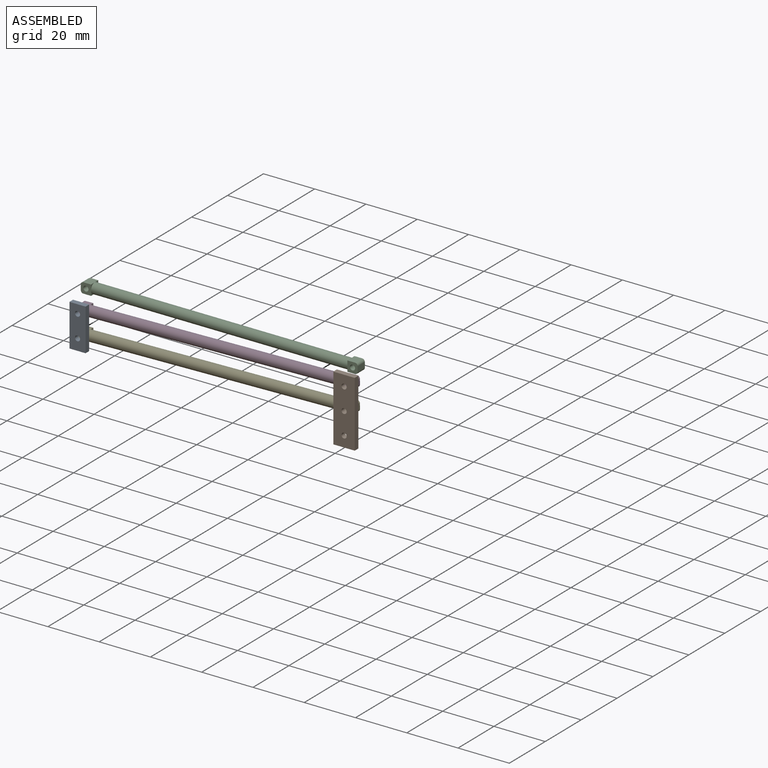
[diagram: assembled view]
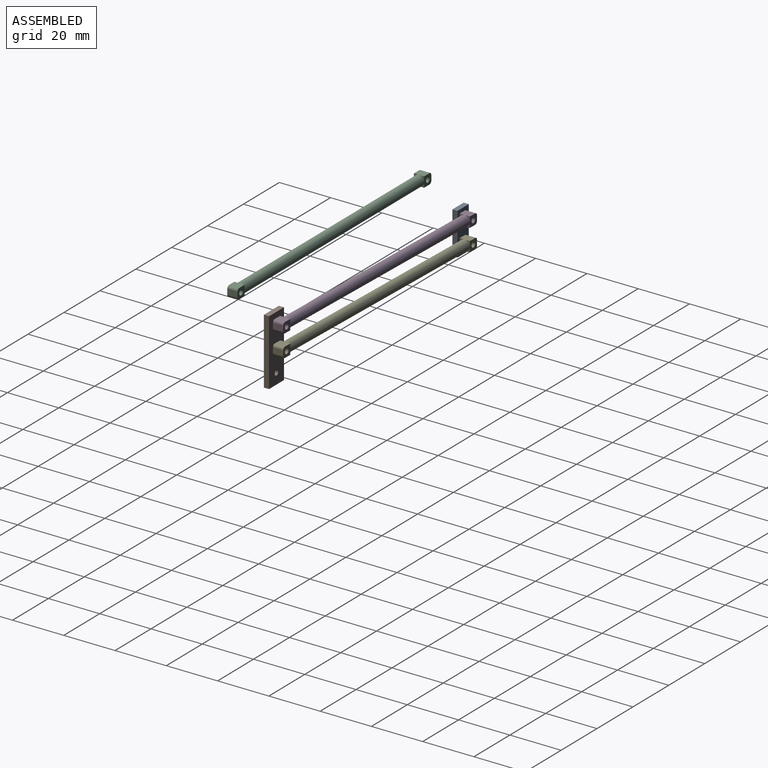
[diagram: assembled view, second angle]
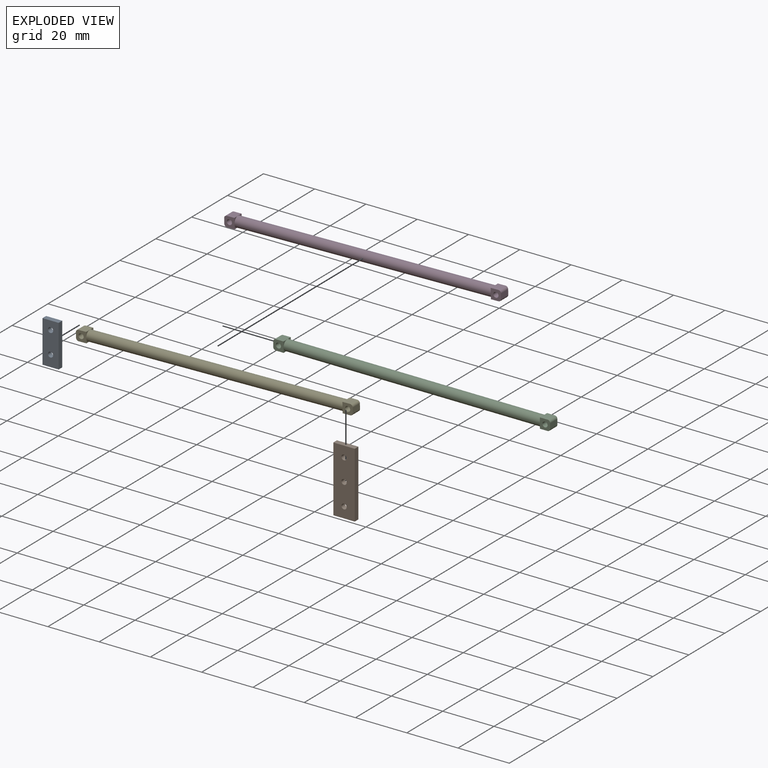
[diagram: exploded view]
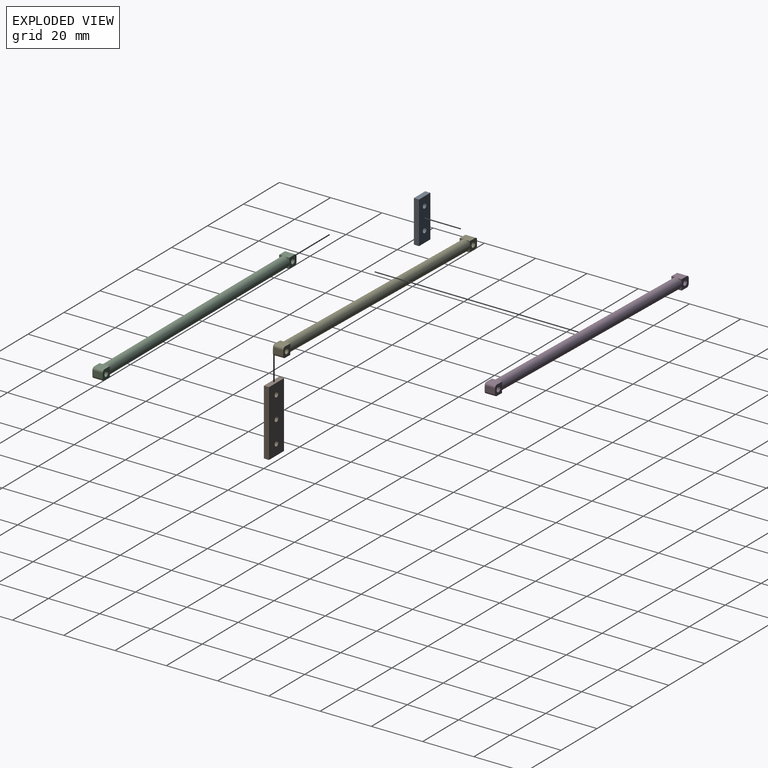
[diagram: exploded view, second angle]
ASSEMBLY  parts=5 mates=4
PART A: 8 faces, bbox 6.3x2x16.4 mm
  f0: plane 16.44x2mm, normal (-1,0,0), area 32.9mm2, adj f1,f5,f6,f7
  f1: plane 6.29x2mm, normal (0,0,-1), area 12.6mm2, adj f0,f2,f6,f7
  f2: plane 16.44x2mm, normal (1,0,0), area 32.9mm2, adj f1,f5,f6,f7
  f3: cylinder r=1mm len=2mm, axis (0,1,0), area 12.6mm2, adj f6,f7
  f4: cylinder r=1mm len=2mm, axis (0,1,0), area 12.6mm2, adj f6,f7
  f5: plane 6.29x2mm, normal (0,0,1), area 12.6mm2, adj f0,f2,f6,f7
  f6: plane 16.44x6.29mm, normal (0,-1,0), area 97.1mm2, adj f0,f1,f2,f3,f4,f5
  f7: plane 16.44x6.29mm, normal (0,1,0), area 97.1mm2, adj f0,f1,f2,f3,f4,f5
PART B: 9 faces, bbox 8.4x2x25.7 mm
  f0: plane 25.67x2mm, normal (-1,0,0), area 51.3mm2, adj f1,f6,f7,f8
  f1: plane 8.36x2mm, normal (0,0,-1), area 16.7mm2, adj f0,f2,f7,f8
  f2: plane 25.67x2mm, normal (1,0,0), area 51.3mm2, adj f1,f6,f7,f8
  f3: cylinder r=1mm len=2mm, axis (0,1,0), area 12.6mm2, adj f7,f8
  f4: cylinder r=1mm len=2mm, axis (0,1,0), area 12.6mm2, adj f7,f8
  f5: cylinder r=1mm len=2mm, axis (0,1,0), area 12.6mm2, adj f7,f8
  f6: plane 8.36x2mm, normal (0,0,1), area 16.7mm2, adj f0,f2,f7,f8
  f7: plane 25.67x8.36mm, normal (0,-1,0), area 205.1mm2, adj f0,f1,f2,f3,f4,f5,f6
  f8: plane 25.67x8.36mm, normal (0,1,0), area 205.1mm2, adj f0,f1,f2,f3,f4,f5,f6
PART C: 25 faces, bbox 108x4x4 mm
  f0: cylinder r=2mm len=100mm, axis (-1,0,0), area 1256.6mm2, adj f1,f2,f3,f5,f13,f14,f15,f16
  f1: plane 2x2mm, normal (-1,0,0), area 0.9mm2, adj f0,f4,f12
  f2: plane 2x2mm, normal (-1,0,0), area 0.9mm2, adj f0,f6,f12
  f3: plane 2x2mm, normal (-1,0,0), area 0.9mm2, adj f0,f6,f11
  f4: plane 4x3mm, normal (0,0,1), area 12mm2, adj f1,f5,f10,f11,f12
  f5: plane 2x2mm, normal (-1,0,0), area 0.9mm2, adj f0,f4,f11
  f6: plane 4x3mm, normal (0,0,-1), area 12mm2, adj f2,f3,f7,f11,f12
  f7: cylinder r=1mm len=4mm, axis (0,1,0), area 6.3mm2, adj f6,f8,f11,f12
  f8: plane 4x2mm, normal (1,0,0), area 8mm2, adj f7,f10,f11,f12
  f9: cylinder r=1mm len=4mm, axis (0,1,0), area 25.1mm2, adj f11,f12
  f10: cylinder r=1mm len=4mm, axis (0,1,0), area 6.3mm2, adj f4,f8,f11,f12
  f11: plane 4x4mm, normal (0,-1,0), area 12.4mm2, adj f3,f4,f5,f6,f7,f8,f9,f10
  f12: plane 4x4mm, normal (0,1,0), area 12.4mm2, adj f1,f2,f4,f6,f7,f8,f9,f10
  f13: plane 2x2mm, normal (1,0,0), area 0.9mm2, adj f0,f17,f24
  f14: plane 2x2mm, normal (1,0,0), area 0.9mm2, adj f0,f22,f24
  f15: plane 2x2mm, normal (1,0,0), area 0.9mm2, adj f0,f22,f23
  f16: plane 2x2mm, normal (1,0,0), area 0.9mm2, adj f0,f17,f23
  f17: plane 4x3mm, normal (0,0,1), area 12mm2, adj f13,f16,f18,f23,f24
  f18: cylinder r=1mm len=4mm, axis (0,1,0), area 6.3mm2, adj f17,f19,f23,f24
  f19: plane 4x2mm, normal (-1,0,0), area 8mm2, adj f18,f20,f23,f24
  f20: cylinder r=1mm len=4mm, axis (0,1,0), area 6.3mm2, adj f19,f22,f23,f24
  f21: cylinder r=1mm len=4mm, axis (0,1,0), area 25.1mm2, adj f23,f24
  f22: plane 4x3mm, normal (0,0,-1), area 12mm2, adj f14,f15,f20,f23,f24
  f23: plane 4x4mm, normal (0,-1,0), area 12.4mm2, adj f15,f16,f17,f18,f19,f20,f21,f22
  f24: plane 4x4mm, normal (0,1,0), area 12.4mm2, adj f13,f14,f17,f18,f19,f20,f21,f22
PART D: same geometry as C
PART E: same geometry as C
PLACE A t=(6.81,0,0.77)mm fixed
PLACE B rot(axis=(0,1,0),0deg) t=(102.59,0,2.57)mm
PLACE C t=(16.86,-9.07,15.6)mm
PLACE D rot(axis=(0,-1,0),1.2deg) t=(7.28,2,1.9)mm
PLACE E rot(axis=(0,-1,0),1.2deg) t=(7.28,2,-6.75)mm
MATE revolute E.f21 <-> A.f4  axis (0,-1,0) through (-51.07,0,-5.08)mm
MATE revolute D.f21 <-> A.f3  axis (0,-1,0) through (-51.07,0,3.57)mm
MATE revolute B.f4 <-> E.f9  axis (0,-1,0) through (52.91,-2,-2.9)mm
MATE revolute D.f9 <-> B.f3  axis (0,1,0) through (52.91,0,5.75)mm
